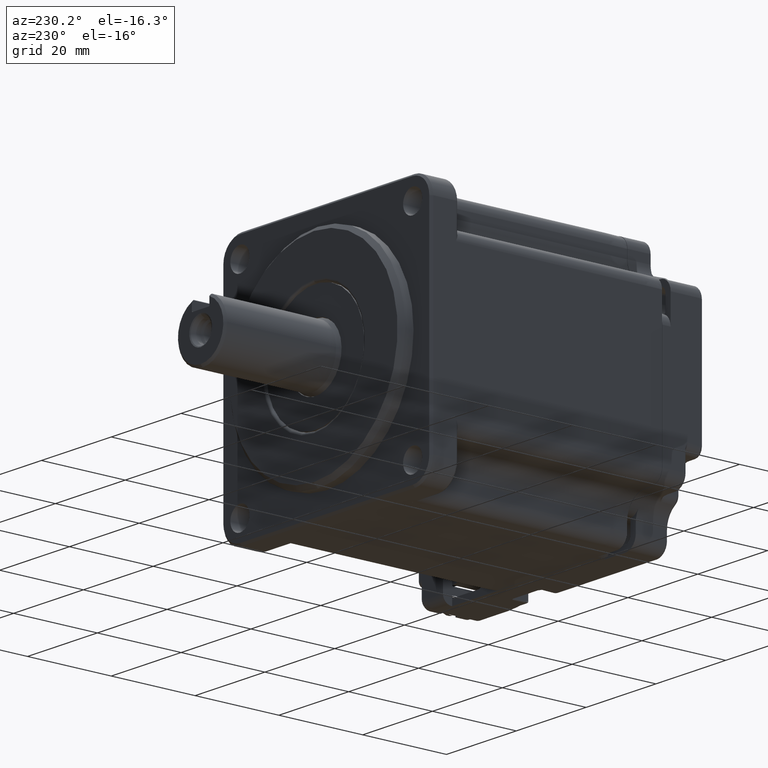
[diagram: clean part render]
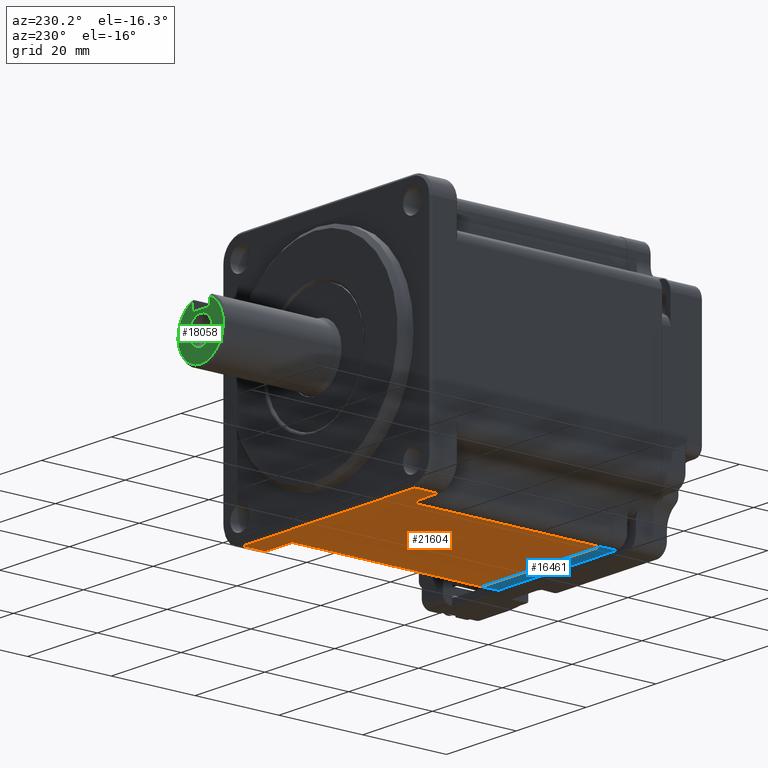
[diagram: same view with three faces highlighted in distinct colors, each labeled with its STEP entity id]
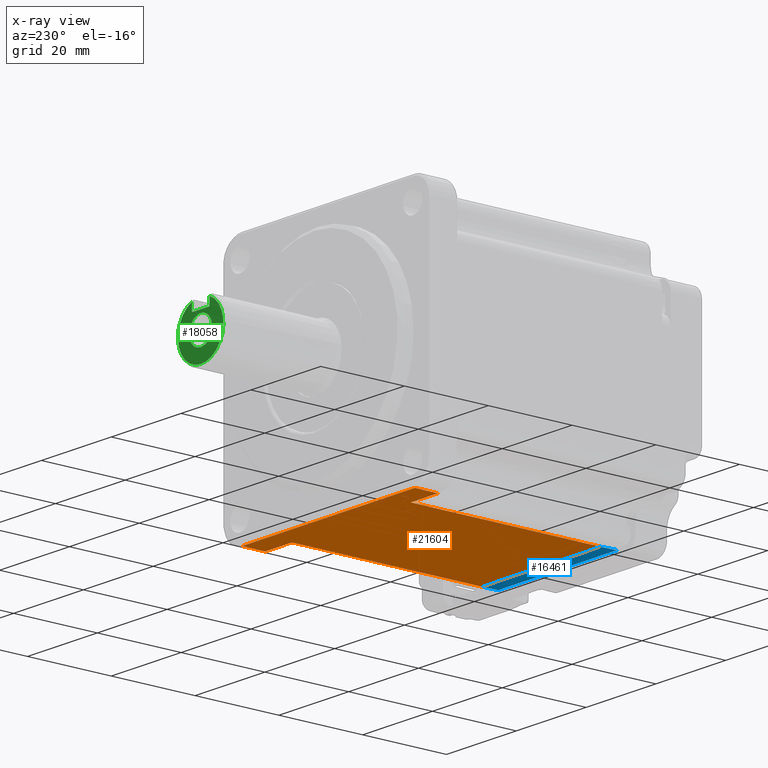
[diagram: x-ray of the same camera — body ghosted, the three highlighted faces saturated]
A machine part, auxiliary view with three faces highlighted in distinct colors.
The next image is the same camera in x-ray (body ghosted, the three faces saturated) — at least one of them is partly hidden behind the body in this view.
Their STEP definitions:

[orange] entity #21604 — the highlighted planar face has unit normal (0, -0, 1).
#718 = LINE ( 'NONE', #26616, #21121 ) ;
#1025 = VERTEX_POINT ( 'NONE', #12177 ) ;
#1547 = DIRECTION ( 'NONE',  ( 1.000000000000000000, 0.000000000000000000, -5.782411586589357392E-17 ) ) ;
#2091 = LINE ( 'NONE', #7299, #24430 ) ;
#2116 = CARTESIAN_POINT ( 'NONE',  ( 16.99999999999998224, -39.20000000000000284, -30.00000000000000000 ) ) ;
#2313 = DIRECTION ( 'NONE',  ( 0.000000000000000000, -1.000000000000000000, 0.000000000000000000 ) ) ;
#2409 = ORIENTED_EDGE ( 'NONE', *, *, #16801, .T. ) ;
#2441 = CARTESIAN_POINT ( 'NONE',  ( 24.74999999999999645, 15.00000000000000000, -30.00000000000000000 ) ) ;
#2539 = CARTESIAN_POINT ( 'NONE',  ( 16.99999999999998224, 6.000000000000000000, -30.00000000000000000 ) ) ;
#3135 = DIRECTION ( 'NONE',  ( -0.000000000000000000, 1.000000000000000000, -0.000000000000000000 ) ) ;
#4901 = VECTOR ( 'NONE', #17684, 1000.000000000000000 ) ;
#5181 = DIRECTION ( 'NONE',  ( 1.000000000000000000, 0.000000000000000000, 2.040851148208010710E-16 ) ) ;
#5388 = EDGE_CURVE ( 'NONE', #8271, #25146, #2091, .T. ) ;
#6476 = EDGE_CURVE ( 'NONE', #1025, #22983, #19945, .T. ) ;
#7299 = CARTESIAN_POINT ( 'NONE',  ( -16.99999999999997513, -39.20000000000000284, -30.00000000000000711 ) ) ;
#7320 = CARTESIAN_POINT ( 'NONE',  ( 24.74999999999999645, 11.50000000000000000, -30.00000000000000000 ) ) ;
#7542 = LINE ( 'NONE', #18444, #19929 ) ;
#8206 = PLANE ( 'NONE',  #9913 ) ;
#8271 = VERTEX_POINT ( 'NONE', #14110 ) ;
#8348 = DIRECTION ( 'NONE',  ( 5.782411586589357392E-17, -0.000000000000000000, 1.000000000000000000 ) ) ;
#8628 = CARTESIAN_POINT ( 'NONE',  ( 30.00000000000000000, 15.00000000000000000, -30.00000000000000000 ) ) ;
#8865 = LINE ( 'NONE', #22178, #23782 ) ;
#9322 = CARTESIAN_POINT ( 'NONE',  ( -24.74999999999999289, 11.50000000000000000, -29.99999999999999645 ) ) ;
#9913 = AXIS2_PLACEMENT_3D ( 'NONE', #8628, #8348, #1547 ) ;
#10124 = EDGE_CURVE ( 'NONE', #13166, #23292, #7542, .T. ) ;
#10473 = LINE ( 'NONE', #2116, #13971 ) ;
#11676 = EDGE_CURVE ( 'NONE', #23292, #18175, #14019, .T. ) ;
#12177 = CARTESIAN_POINT ( 'NONE',  ( 24.74999999999999645, 6.000000000000000000, -30.00000000000000000 ) ) ;
#12367 = VECTOR ( 'NONE', #3135, 1000.000000000000000 ) ;
#12400 = CARTESIAN_POINT ( 'NONE',  ( 16.99999999999998224, -39.20000000000000284, -30.00000000000000000 ) ) ;
#12509 = CARTESIAN_POINT ( 'NONE',  ( 16.99999999999998224, 5.999999999999984901, -30.00000000000000000 ) ) ;
#12940 = ORIENTED_EDGE ( 'NONE', *, *, #18635, .T. ) ;
#13065 = LINE ( 'NONE', #2441, #16493 ) ;
#13166 = VERTEX_POINT ( 'NONE', #23925 ) ;
#13227 = ORIENTED_EDGE ( 'NONE', *, *, #10124, .T. ) ;
#13653 = ORIENTED_EDGE ( 'NONE', *, *, #17887, .T. ) ;
#13971 = VECTOR ( 'NONE', #28026, 1000.000000000000000 ) ;
#14019 = LINE ( 'NONE', #14296, #12367 ) ;
#14110 = CARTESIAN_POINT ( 'NONE',  ( -16.99999999999997513, -39.20000000000000284, -30.00000000000000711 ) ) ;
#14181 = DIRECTION ( 'NONE',  ( -1.000000000000000000, -0.000000000000000000, 5.782411586589357392E-17 ) ) ;
#14296 = CARTESIAN_POINT ( 'NONE',  ( -24.74999999999999289, 15.00000000000000000, -29.99999999999999645 ) ) ;
#15606 = EDGE_LOOP ( 'NONE', ( #24219, #12940, #13653, #20028, #19406, #21850, #2409, #13227 ) ) ;
#16493 = VECTOR ( 'NONE', #2313, 1000.000000000000000 ) ;
#16801 = EDGE_CURVE ( 'NONE', #8271, #13166, #718, .T. ) ;
#17684 = DIRECTION ( 'NONE',  ( -1.000000000000000000, -0.000000000000000000, 5.782411586589357392E-17 ) ) ;
#17887 = EDGE_CURVE ( 'NONE', #18391, #1025, #13065, .T. ) ;
#18175 = VERTEX_POINT ( 'NONE', #9322 ) ;
#18391 = VERTEX_POINT ( 'NONE', #7320 ) ;
#18444 = CARTESIAN_POINT ( 'NONE',  ( -24.74999999999999645, 6.000000000000000000, -29.99999999999999645 ) ) ;
#18635 = EDGE_CURVE ( 'NONE', #18175, #18391, #8865, .T. ) ;
#19406 = ORIENTED_EDGE ( 'NONE', *, *, #21704, .F. ) ;
#19929 = VECTOR ( 'NONE', #14181, 1000.000000000000000 ) ;
#19945 = LINE ( 'NONE', #2539, #4901 ) ;
#20028 = ORIENTED_EDGE ( 'NONE', *, *, #6476, .T. ) ;
#20653 = DIRECTION ( 'NONE',  ( -0.000000000000000000, 1.000000000000000000, -0.000000000000000000 ) ) ;
#21121 = VECTOR ( 'NONE', #20653, 1000.000000000000000 ) ;
#21604 = ADVANCED_FACE ( 'NONE', ( #27738 ), #8206, .F. ) ;
#21704 = EDGE_CURVE ( 'NONE', #25146, #22983, #10473, .T. ) ;
#21850 = ORIENTED_EDGE ( 'NONE', *, *, #5388, .F. ) ;
#22178 = CARTESIAN_POINT ( 'NONE',  ( 24.74999999999999645, 11.50000000000000000, -30.00000000000000000 ) ) ;
#22983 = VERTEX_POINT ( 'NONE', #12509 ) ;
#23292 = VERTEX_POINT ( 'NONE', #25225 ) ;
#23782 = VECTOR ( 'NONE', #25867, 1000.000000000000000 ) ;
#23925 = CARTESIAN_POINT ( 'NONE',  ( -16.99999999999997513, 6.000000000000000000, -29.99999999999999645 ) ) ;
#24219 = ORIENTED_EDGE ( 'NONE', *, *, #11676, .T. ) ;
#24430 = VECTOR ( 'NONE', #5181, 1000.000000000000000 ) ;
#25146 = VERTEX_POINT ( 'NONE', #12400 ) ;
#25225 = CARTESIAN_POINT ( 'NONE',  ( -24.74999999999999289, 6.000000000000000000, -29.99999999999999645 ) ) ;
#25867 = DIRECTION ( 'NONE',  ( 1.000000000000000000, 0.000000000000000000, -5.782411586589357392E-17 ) ) ;
#26616 = CARTESIAN_POINT ( 'NONE',  ( -16.99999999999997513, -39.20000000000000284, -30.00000000000000711 ) ) ;
#27738 = FACE_OUTER_BOUND ( 'NONE', #15606, .T. ) ;
#28026 = DIRECTION ( 'NONE',  ( -0.000000000000000000, 1.000000000000000000, -0.000000000000000000 ) ) ;

[blue] entity #16461 — the highlighted planar face has unit normal (0, -0.0175, -0.9998).
#500 = VECTOR ( 'NONE', #11368, 1000.000000000000227 ) ;
#700 = ORIENTED_EDGE ( 'NONE', *, *, #16733, .T. ) ;
#735 = CARTESIAN_POINT ( 'NONE',  ( 19.99999999999999645, -39.19999999999999574, -29.99999999999999645 ) ) ;
#844 = CARTESIAN_POINT ( 'NONE',  ( -17.00000000000000711, -39.19999999999999574, -29.99999999999999645 ) ) ;
#1254 = DIRECTION ( 'NONE',  ( -0.000000000000000000, 0.9998476951563911586, -0.01745240643728354982 ) ) ;
#2548 = DIRECTION ( 'NONE',  ( -1.000000000000000000, -0.000000000000000000, -0.000000000000000000 ) ) ;
#3515 = CARTESIAN_POINT ( 'NONE',  ( -17.00000000000000711, -39.19999999999999574, -29.99999999999999645 ) ) ;
#4665 = CARTESIAN_POINT ( 'NONE',  ( -3.469446951953614189E-15, -43.20000000000000284, -29.93017974028712302 ) ) ;
#4832 = LINE ( 'NONE', #735, #5715 ) ;
#4994 = ORIENTED_EDGE ( 'NONE', *, *, #9977, .T. ) ;
#5715 = VECTOR ( 'NONE', #24372, 1000.000000000000000 ) ;
#5758 = AXIS2_PLACEMENT_3D ( 'NONE', #17627, #11259, #26397 ) ;
#7279 = PLANE ( 'NONE',  #5758 ) ;
#8647 = EDGE_LOOP ( 'NONE', ( #700, #27099, #12080, #4994 ) ) ;
#9977 = EDGE_CURVE ( 'NONE', #17985, #26515, #15758, .T. ) ;
#10281 = VECTOR ( 'NONE', #2548, 1000.000000000000000 ) ;
#11259 = DIRECTION ( 'NONE',  ( 0.000000000000000000, -0.01745240643728354982, -0.9998476951563912696 ) ) ;
#11368 = DIRECTION ( 'NONE',  ( 0.000000000000000000, -0.9998476951563911586, 0.01745240643728354982 ) ) ;
#11503 = CARTESIAN_POINT ( 'NONE',  ( 16.99999999999999645, -39.19999999999999574, -29.99999999999999645 ) ) ;
#12080 = ORIENTED_EDGE ( 'NONE', *, *, #19055, .F. ) ;
#12176 = EDGE_CURVE ( 'NONE', #21389, #12222, #16257, .T. ) ;
#12222 = VERTEX_POINT ( 'NONE', #844 ) ;
#13928 = FACE_OUTER_BOUND ( 'NONE', #8647, .T. ) ;
#14341 = CARTESIAN_POINT ( 'NONE',  ( 16.99999999999999645, -43.20000000000000284, -29.93017974028712302 ) ) ;
#15033 = CARTESIAN_POINT ( 'NONE',  ( -17.00000000000000711, -43.20000000000000284, -29.93017974028712302 ) ) ;
#15427 = LINE ( 'NONE', #4665, #10281 ) ;
#15758 = LINE ( 'NONE', #11503, #500 ) ;
#16257 = LINE ( 'NONE', #3515, #18712 ) ;
#16461 = ADVANCED_FACE ( 'NONE', ( #13928 ), #7279, .T. ) ;
#16733 = EDGE_CURVE ( 'NONE', #26515, #21389, #15427, .T. ) ;
#17627 = CARTESIAN_POINT ( 'NONE',  ( 19.99999999999999645, -39.19999999999999574, -29.99999999999999645 ) ) ;
#17985 = VERTEX_POINT ( 'NONE', #19990 ) ;
#18712 = VECTOR ( 'NONE', #1254, 1000.000000000000227 ) ;
#19055 = EDGE_CURVE ( 'NONE', #17985, #12222, #4832, .T. ) ;
#19990 = CARTESIAN_POINT ( 'NONE',  ( 16.99999999999999645, -39.19999999999999574, -29.99999999999999645 ) ) ;
#21389 = VERTEX_POINT ( 'NONE', #15033 ) ;
#24372 = DIRECTION ( 'NONE',  ( -1.000000000000000000, 0.000000000000000000, 0.000000000000000000 ) ) ;
#26397 = DIRECTION ( 'NONE',  ( 0.000000000000000000, 0.9998476951563911586, -0.01745240643728354635 ) ) ;
#26515 = VERTEX_POINT ( 'NONE', #14341 ) ;
#27099 = ORIENTED_EDGE ( 'NONE', *, *, #12176, .T. ) ;

[green] entity #18058 — the highlighted planar face has unit normal (-0, -1, 0).
#128 = CARTESIAN_POINT ( 'NONE',  ( -8.608619336893927010E-16, 41.99999999999996447, -3.513154249591569659E-16 ) ) ;
#201 = AXIS2_PLACEMENT_3D ( 'NONE', #24039, #4641, #2521 ) ;
#436 = ORIENTED_EDGE ( 'NONE', *, *, #19722, .T. ) ;
#470 = FACE_OUTER_BOUND ( 'NONE', #16138, .T. ) ;
#919 = ORIENTED_EDGE ( 'NONE', *, *, #14511, .T. ) ;
#1641 = VERTEX_POINT ( 'NONE', #8467 ) ;
#2123 = DIRECTION ( 'NONE',  ( -2.775557561562890735E-17, -5.581540212573080059E-17, -1.000000000000000000 ) ) ;
#2208 = EDGE_LOOP ( 'NONE', ( #25615, #19803 ) ) ;
#2261 = DIRECTION ( 'NONE',  ( -3.778497737114213938E-18, -1.000000000000000000, 5.581540212573080059E-17 ) ) ;
#2521 = DIRECTION ( 'NONE',  ( 0.000000000000000000, 0.000000000000000000, -1.000000000000000000 ) ) ;
#2648 = DIRECTION ( 'NONE',  ( -2.775557561562890735E-17, -5.581540212573080059E-17, -1.000000000000000000 ) ) ;
#3788 = CIRCLE ( 'NONE', #6952, 6.499999999999986677 ) ;
#4641 = DIRECTION ( 'NONE',  ( -3.778497737114213938E-18, -1.000000000000000000, 5.581540212573080059E-17 ) ) ;
#4694 = CARTESIAN_POINT ( 'NONE',  ( -2.300000000000001155, 41.99999999999996447, 4.000000000000000888 ) ) ;
#4890 = CIRCLE ( 'NONE', #26139, 0.1999999999999996503 ) ;
#4993 = LINE ( 'NONE', #13617, #11083 ) ;
#5006 = DIRECTION ( 'NONE',  ( 0.000000000000000000, 0.000000000000000000, -1.000000000000000000 ) ) ;
#5187 = AXIS2_PLACEMENT_3D ( 'NONE', #25430, #12809, #25292 ) ;
#5431 = DIRECTION ( 'NONE',  ( -3.778497737114213938E-18, -1.000000000000000000, 5.581540212573080059E-17 ) ) ;
#5638 = ORIENTED_EDGE ( 'NONE', *, *, #18035, .T. ) ;
#5698 = VERTEX_POINT ( 'NONE', #15215 ) ;
#6689 = CARTESIAN_POINT ( 'NONE',  ( -8.608619336893927010E-16, 41.99999999999996447, -3.513154249591569659E-16 ) ) ;
#6952 = AXIS2_PLACEMENT_3D ( 'NONE', #128, #7201, #20081 ) ;
#6964 = FACE_BOUND ( 'NONE', #2208, .T. ) ;
#7201 = DIRECTION ( 'NONE',  ( 3.778497737114213938E-18, 1.000000000000000000, -5.581540212573080059E-17 ) ) ;
#7314 = CIRCLE ( 'NONE', #10479, 3.250000000000000888 ) ;
#8041 = ORIENTED_EDGE ( 'NONE', *, *, #24961, .T. ) ;
#8467 = CARTESIAN_POINT ( 'NONE',  ( 2.499999999999999556, 41.99999999999996447, 5.999999999999985789 ) ) ;
#9099 = PLANE ( 'NONE',  #14697 ) ;
#9776 = CARTESIAN_POINT ( 'NONE',  ( -2.500000000000001332, 41.99999999999996447, 4.200000000000000178 ) ) ;
#10479 = AXIS2_PLACEMENT_3D ( 'NONE', #6689, #23415, #10674 ) ;
#10674 = DIRECTION ( 'NONE',  ( 2.775557561562890118E-17, 0.000000000000000000, 1.000000000000000000 ) ) ;
#10727 = CARTESIAN_POINT ( 'NONE',  ( -8.608619336893927010E-16, 41.99999999999996447, -3.513154249591569659E-16 ) ) ;
#11083 = VECTOR ( 'NONE', #11225, 1000.000000000000000 ) ;
#11225 = DIRECTION ( 'NONE',  ( 1.000000000000000000, -3.778497737114215478E-18, -2.775557561562890735E-17 ) ) ;
#11996 = EDGE_CURVE ( 'NONE', #1641, #26561, #3788, .T. ) ;
#12401 = CIRCLE ( 'NONE', #201, 0.1999999999999996503 ) ;
#12448 = EDGE_CURVE ( 'NONE', #26196, #20449, #19628, .T. ) ;
#12518 = CIRCLE ( 'NONE', #16130, 6.499999999999986677 ) ;
#12576 = ORIENTED_EDGE ( 'NONE', *, *, #20220, .T. ) ;
#12650 = EDGE_CURVE ( 'NONE', #22508, #17720, #26892, .T. ) ;
#12809 = DIRECTION ( 'NONE',  ( 3.778497737114213938E-18, 1.000000000000000000, -5.581540212573080059E-17 ) ) ;
#12833 = ORIENTED_EDGE ( 'NONE', *, *, #12448, .T. ) ;
#13013 = CARTESIAN_POINT ( 'NONE',  ( -8.608619336893927010E-16, 41.99999999999996447, -3.513154249591569659E-16 ) ) ;
#13617 = CARTESIAN_POINT ( 'NONE',  ( -7.498396312268770470E-16, 41.99999999999996447, 4.000000000000000888 ) ) ;
#14123 = DIRECTION ( 'NONE',  ( 2.775557561562890735E-17, 5.581540212573080059E-17, 1.000000000000000000 ) ) ;
#14185 = CARTESIAN_POINT ( 'NONE',  ( -2.300000000000001155, 41.99999999999996447, 4.200000000000000178 ) ) ;
#14511 = EDGE_CURVE ( 'NONE', #5698, #1641, #16256, .T. ) ;
#14545 = CARTESIAN_POINT ( 'NONE',  ( 2.500000000000000000, 41.99999999999996447, 9.501000000000001222 ) ) ;
#14697 = AXIS2_PLACEMENT_3D ( 'NONE', #13013, #2261, #2123 ) ;
#14802 = CARTESIAN_POINT ( 'NONE',  ( -2.500000000000001332, 41.99999999999996447, 5.999999999999985789 ) ) ;
#15215 = CARTESIAN_POINT ( 'NONE',  ( 2.499999999999999556, 41.99999999999996447, 4.200000000000000178 ) ) ;
#16130 = AXIS2_PLACEMENT_3D ( 'NONE', #10727, #27709, #16949 ) ;
#16138 = EDGE_LOOP ( 'NONE', ( #919, #22164, #436, #12833, #12576, #5638, #8041 ) ) ;
#16256 = LINE ( 'NONE', #14545, #25568 ) ;
#16618 = CARTESIAN_POINT ( 'NONE',  ( -7.706563129385988307E-16, 41.99999999999996447, 3.249999999999999556 ) ) ;
#16931 = VECTOR ( 'NONE', #2648, 1000.000000000000000 ) ;
#16949 = DIRECTION ( 'NONE',  ( -2.775557561562890735E-17, 0.000000000000000000, -1.000000000000000000 ) ) ;
#17720 = VERTEX_POINT ( 'NONE', #16618 ) ;
#18035 = EDGE_CURVE ( 'NONE', #21500, #20305, #4993, .T. ) ;
#18058 = ADVANCED_FACE ( 'NONE', ( #6964, #470 ), #9099, .F. ) ;
#19628 = LINE ( 'NONE', #26019, #16931 ) ;
#19722 = EDGE_CURVE ( 'NONE', #26561, #26196, #12518, .T. ) ;
#19803 = ORIENTED_EDGE ( 'NONE', *, *, #12650, .F. ) ;
#20081 = DIRECTION ( 'NONE',  ( -2.775557561562890735E-17, 0.000000000000000000, -1.000000000000000000 ) ) ;
#20220 = EDGE_CURVE ( 'NONE', #20449, #21500, #4890, .T. ) ;
#20305 = VERTEX_POINT ( 'NONE', #25937 ) ;
#20449 = VERTEX_POINT ( 'NONE', #9776 ) ;
#21500 = VERTEX_POINT ( 'NONE', #4694 ) ;
#22164 = ORIENTED_EDGE ( 'NONE', *, *, #11996, .T. ) ;
#22508 = VERTEX_POINT ( 'NONE', #22928 ) ;
#22928 = CARTESIAN_POINT ( 'NONE',  ( -5.530573447172971426E-16, 41.99999999999996447, -3.249999999999999556 ) ) ;
#23415 = DIRECTION ( 'NONE',  ( 3.778497737114213938E-18, 1.000000000000000000, -5.581540212573080059E-17 ) ) ;
#24039 = CARTESIAN_POINT ( 'NONE',  ( 2.299999999999999378, 41.99999999999996447, 4.200000000000000178 ) ) ;
#24961 = EDGE_CURVE ( 'NONE', #20305, #5698, #12401, .T. ) ;
#25292 = DIRECTION ( 'NONE',  ( 2.775557561562890118E-17, 0.000000000000000000, 1.000000000000000000 ) ) ;
#25430 = CARTESIAN_POINT ( 'NONE',  ( -8.608619336893927010E-16, 41.99999999999996447, -3.513154249591569659E-16 ) ) ;
#25568 = VECTOR ( 'NONE', #14123, 1000.000000000000000 ) ;
#25615 = ORIENTED_EDGE ( 'NONE', *, *, #27904, .F. ) ;
#25937 = CARTESIAN_POINT ( 'NONE',  ( 2.299999999999999378, 41.99999999999996447, 4.000000000000000888 ) ) ;
#26019 = CARTESIAN_POINT ( 'NONE',  ( -2.500000000000000888, 41.99999999999996447, 9.501000000000001222 ) ) ;
#26139 = AXIS2_PLACEMENT_3D ( 'NONE', #14185, #5431, #5006 ) ;
#26196 = VERTEX_POINT ( 'NONE', #14802 ) ;
#26561 = VERTEX_POINT ( 'NONE', #27243 ) ;
#26892 = CIRCLE ( 'NONE', #5187, 3.250000000000000888 ) ;
#27243 = CARTESIAN_POINT ( 'NONE',  ( -1.049156693529166354E-15, 41.99999999999996447, -6.499999999999984901 ) ) ;
#27709 = DIRECTION ( 'NONE',  ( 3.778497737114213938E-18, 1.000000000000000000, -5.581540212573080059E-17 ) ) ;
#27904 = EDGE_CURVE ( 'NONE', #17720, #22508, #7314, .T. ) ;